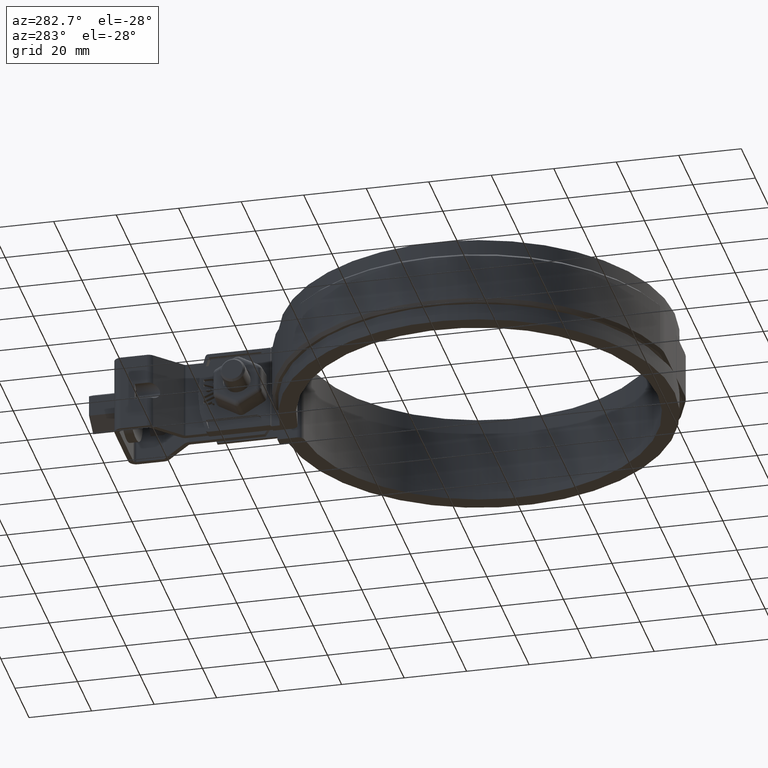
[diagram: clean part render]
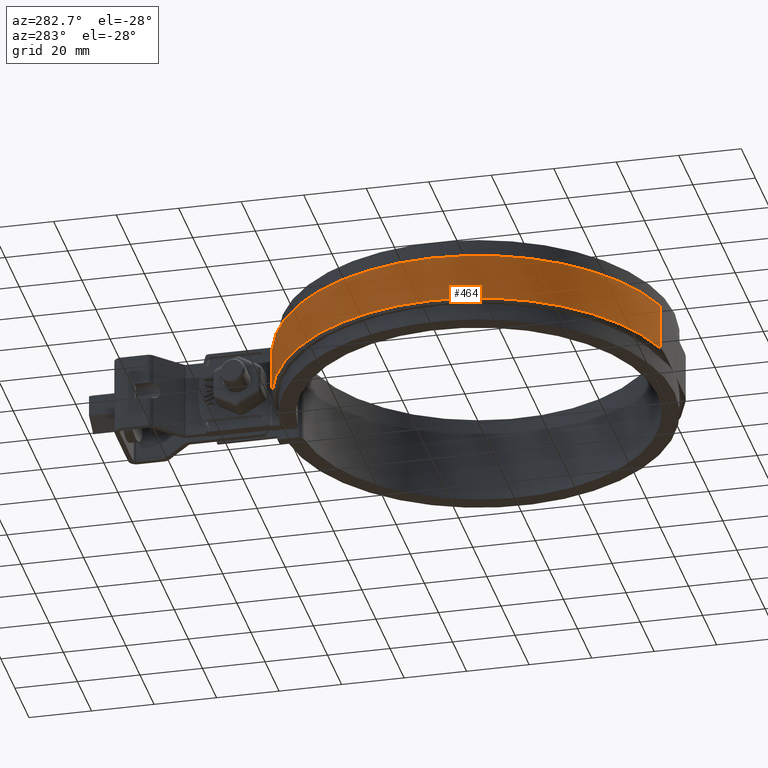
[diagram: same view with one face highlighted and labeled with its STEP entity id]
A machine part, auxiliary view. The second image highlights one B-rep face of the part: STEP entity #464.
In plain terms, the highlighted cylindrical surface (partial cylindrical patch) has radius 64.65 mm, axis along (0, 0, -1).
Its self-contained STEP definition (entity closure, byte-faithful):
#464 = ADVANCED_FACE( '', ( #905 ), #906, .T. );
#905 = FACE_OUTER_BOUND( '', #2162, .T. );
#906 = CYLINDRICAL_SURFACE( '', #2163, 64.6500000000000 );
#2162 = EDGE_LOOP( '', ( #4094, #4095, #4096, #4097 ) );
#2163 = AXIS2_PLACEMENT_3D( '', #4098, #4099, #4100 );
#4094 = ORIENTED_EDGE( '', *, *, #6223, .T. );
#4095 = ORIENTED_EDGE( '', *, *, #6272, .T. );
#4096 = ORIENTED_EDGE( '', *, *, #6292, .T. );
#4097 = ORIENTED_EDGE( '', *, *, #6258, .T. );
#4098 = CARTESIAN_POINT( '', ( -4.33680868994202E-015, 5.55111512312578E-014, -8.50000000000000 ) );
#4099 = DIRECTION( '', ( 0.000000000000000, 0.000000000000000, -1.00000000000000 ) );
#4100 = DIRECTION( '', ( -0.0773395204949730, 0.997004813714361, 0.000000000000000 ) );
#6223 = EDGE_CURVE( '', #7299, #7297, #7300, .F. );
#6258 = EDGE_CURVE( '', #7355, #7299, #7356, .F. );
#6272 = EDGE_CURVE( '', #7297, #7372, #7378, .T. );
#6292 = EDGE_CURVE( '', #7372, #7355, #7406, .T. );
#7297 = VERTEX_POINT( '', #10616 );
#7299 = VERTEX_POINT( '', #10621 );
#7300 = LINE( '', #10622, #10623 );
#7355 = VERTEX_POINT( '', #10732 );
#7356 = CIRCLE( '', #10733, 64.6500000000000 );
#7372 = VERTEX_POINT( '', #10755 );
#7378 = CIRCLE( '', #10762, 64.6500000000000 );
#7406 = LINE( '', #10801, #10802 );
#10616 = CARTESIAN_POINT( '', ( -6.00000000000000, 64.3709756023629, -7.50000000000000 ) );
#10621 = CARTESIAN_POINT( '', ( -6.00000000000000, 64.3709756023629, 7.50000000000000 ) );
#10622 = CARTESIAN_POINT( '', ( -6.00000000000000, 64.3709756023629, -8.50000000000000 ) );
#10623 = VECTOR( '', #12616, 1000.00000000000 );
#10732 = CARTESIAN_POINT( '', ( -18.1643848332456, -62.0457703927492, 7.50000000000000 ) );
#10733 = AXIS2_PLACEMENT_3D( '', #12645, #12646, #12647 );
#10755 = CARTESIAN_POINT( '', ( -18.1643848332456, -62.0457703927492, -7.50000000000000 ) );
#10762 = AXIS2_PLACEMENT_3D( '', #12673, #12674, #12675 );
#10801 = CARTESIAN_POINT( '', ( -18.1643848332456, -62.0457703927492, -8.50000000000000 ) );
#10802 = VECTOR( '', #12711, 1000.00000000000 );
#12616 = DIRECTION( '', ( 0.000000000000000, 0.000000000000000, 1.00000000000000 ) );
#12645 = CARTESIAN_POINT( '', ( -4.33680868994202E-015, 5.55111512312578E-014, 7.50000000000000 ) );
#12646 = DIRECTION( '', ( 0.000000000000000, 0.000000000000000, 1.00000000000000 ) );
#12647 = DIRECTION( '', ( 1.00000000000000, 0.000000000000000, 0.000000000000000 ) );
#12673 = CARTESIAN_POINT( '', ( -4.33680868994202E-015, 5.55111512312578E-014, -7.50000000000000 ) );
#12674 = DIRECTION( '', ( 0.000000000000000, 0.000000000000000, 1.00000000000000 ) );
#12675 = DIRECTION( '', ( 1.00000000000000, 0.000000000000000, 0.000000000000000 ) );
#12711 = DIRECTION( '', ( 0.000000000000000, 0.000000000000000, 1.00000000000000 ) );